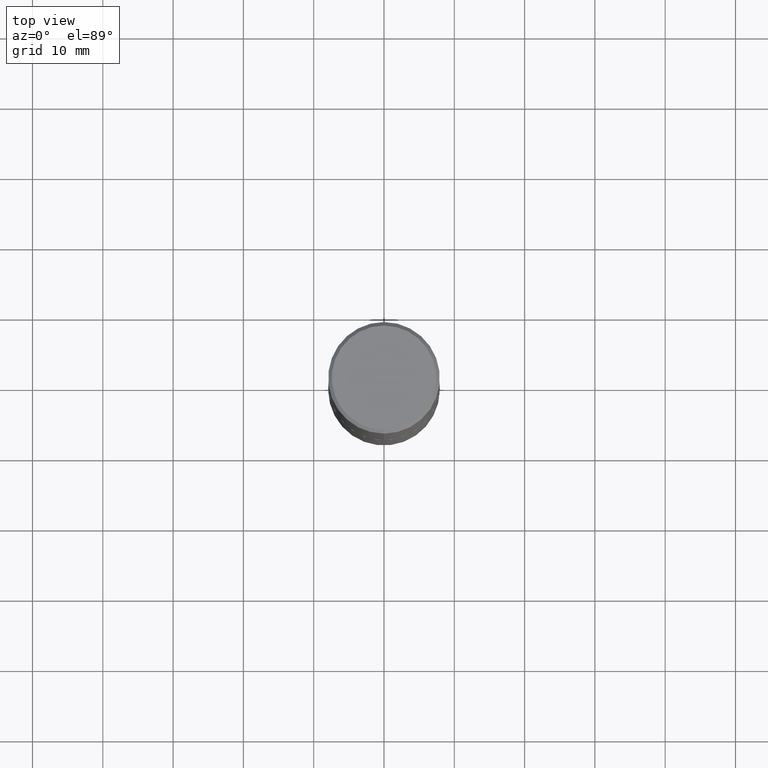
[diagram: clean part render]
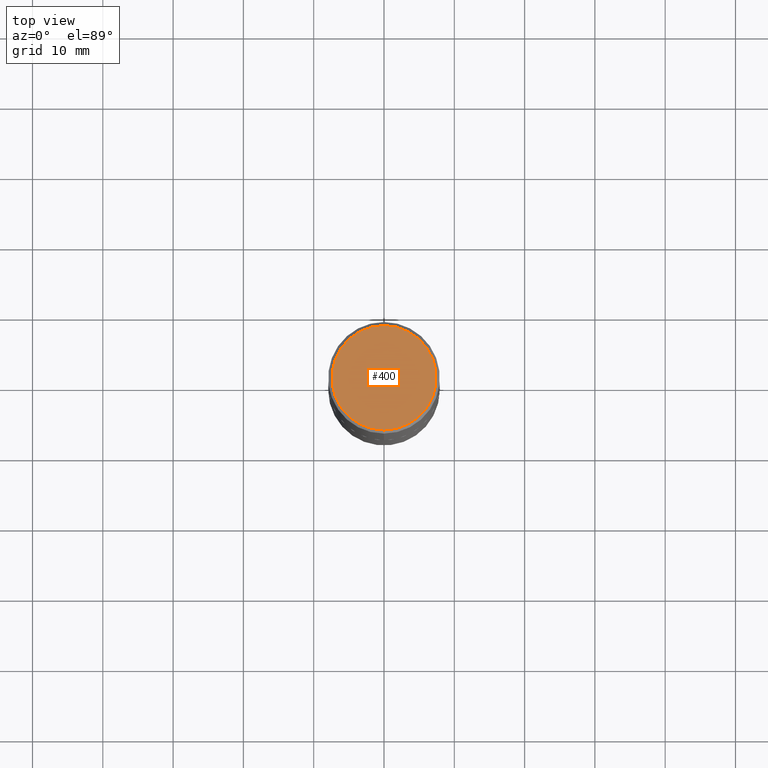
[diagram: same view with one face highlighted and labeled with its STEP entity id]
A machine part, top view. The second image highlights one B-rep face of the part: STEP entity #400.
In plain terms, the highlighted planar face has unit normal (0, -0, -1).
Its self-contained STEP definition (entity closure, byte-faithful):
#12 = AXIS2_PLACEMENT_3D ( 'NONE', #131, #261, #390 ) ;
#28 = CIRCLE ( 'NONE', #12, 0.2924999999999999822 ) ;
#49 = EDGE_LOOP ( 'NONE', ( #294, #110 ) ) ;
#76 = AXIS2_PLACEMENT_3D ( 'NONE', #230, #345, #163 ) ;
#84 = EDGE_CURVE ( 'NONE', #195, #404, #256, .T. ) ;
#97 = CARTESIAN_POINT ( 'NONE',  ( 2.042516583223232540E-15, 0.2924999999999999822, -1.017118871555123169E-15 ) ) ;
#110 = ORIENTED_EDGE ( 'NONE', *, *, #84, .T. ) ;
#131 = CARTESIAN_POINT ( 'NONE',  ( -2.150299018297948745E-46, 3.071607443834507134E-32, 8.795209847407834549E-18 ) ) ;
#163 = DIRECTION ( 'NONE',  ( -6.982962677686265133E-15, -1.000000000000000000, 3.492364022149836753E-15 ) ) ;
#168 = EDGE_CURVE ( 'NONE', #404, #195, #28, .T. ) ;
#195 = VERTEX_POINT ( 'NONE', #203 ) ;
#203 = CARTESIAN_POINT ( 'NONE',  ( -2.075300644325887493E-15, -0.2924999999999999822, 1.030311686326234990E-15 ) ) ;
#224 = DIRECTION ( 'NONE',  ( 2.444852431726452333E-29, -3.492364022149836358E-15, -1.000000000000000000 ) ) ;
#230 = CARTESIAN_POINT ( 'NONE',  ( -2.150299018297948745E-46, 3.071607443834507134E-32, 8.795209847407834549E-18 ) ) ;
#254 = CARTESIAN_POINT ( 'NONE',  ( 2.112346210000095838E-15, 0.2924999999999999822, -1.012721266631419361E-15 ) ) ;
#256 = CIRCLE ( 'NONE', #76, 0.2924999999999999822 ) ;
#261 = DIRECTION ( 'NONE',  ( -2.444852431726452894E-29, 3.492364022149836358E-15, 1.000000000000000000 ) ) ;
#294 = ORIENTED_EDGE ( 'NONE', *, *, #168, .T. ) ;
#322 = PLANE ( 'NONE',  #375 ) ;
#345 = DIRECTION ( 'NONE',  ( -2.444852431726452894E-29, 3.492364022149836358E-15, 1.000000000000000000 ) ) ;
#354 = DIRECTION ( 'NONE',  ( 6.982962677686265922E-15, 1.000000000000000000, -3.492364022149836358E-15 ) ) ;
#357 = FACE_OUTER_BOUND ( 'NONE', #49, .T. ) ;
#375 = AXIS2_PLACEMENT_3D ( 'NONE', #97, #224, #354 ) ;
#390 = DIRECTION ( 'NONE',  ( -6.982962677686265133E-15, -1.000000000000000000, 3.492364022149836753E-15 ) ) ;
#400 = ADVANCED_FACE ( 'NONE', ( #357 ), #322, .F. ) ;
#404 = VERTEX_POINT ( 'NONE', #254 ) ;